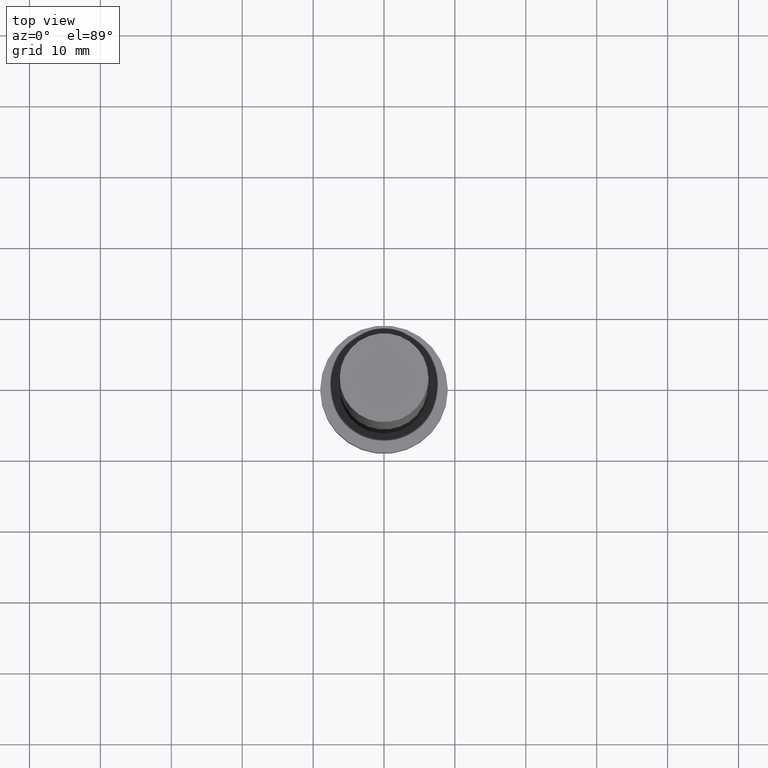
[diagram: clean part render]
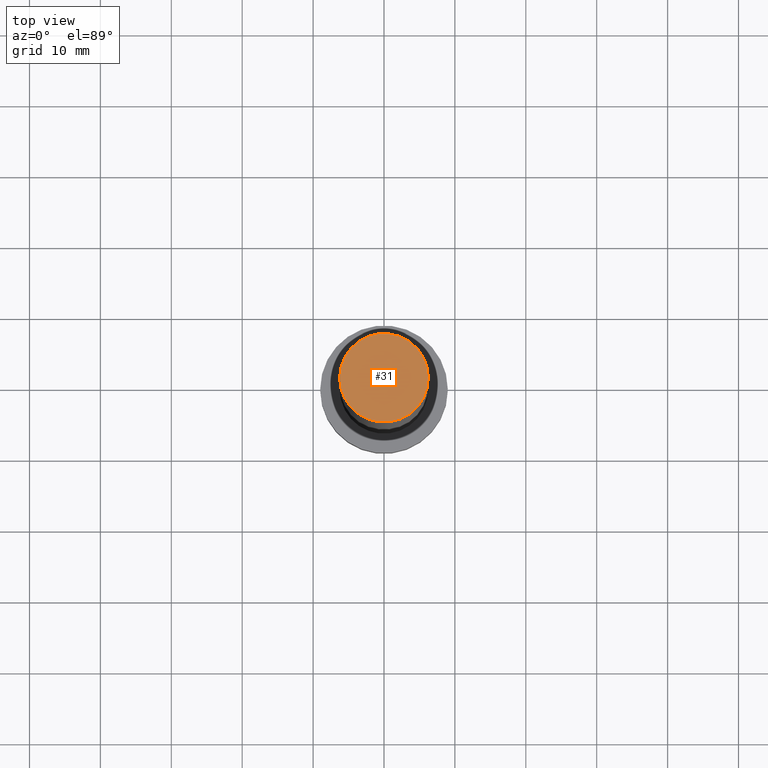
[diagram: same view with one face highlighted and labeled with its STEP entity id]
A machine part, top view. The second image highlights one B-rep face of the part: STEP entity #31.
In plain terms, the highlighted planar face has unit normal (0, 0, 1).
Its self-contained STEP definition (entity closure, byte-faithful):
#9 = CARTESIAN_POINT ( 'NONE',  ( -6.250000000000000000, 0.000000000000000000, 100.0000000000000000 ) ) ;
#11 = DIRECTION ( 'NONE',  ( 0.000000000000000000, 0.000000000000000000, 1.000000000000000000 ) ) ;
#20 = VERTEX_POINT ( 'NONE', #167 ) ;
#31 = ADVANCED_FACE ( 'NONE', ( #34 ), #208, .T. ) ;
#34 = FACE_OUTER_BOUND ( 'NONE', #47, .T. ) ;
#47 = EDGE_LOOP ( 'NONE', ( #226, #201 ) ) ;
#55 = DIRECTION ( 'NONE',  ( 1.000000000000000000, 0.000000000000000000, -0.000000000000000000 ) ) ;
#59 = DIRECTION ( 'NONE',  ( 0.000000000000000000, 0.000000000000000000, 1.000000000000000000 ) ) ;
#62 = VERTEX_POINT ( 'NONE', #9 ) ;
#73 = CARTESIAN_POINT ( 'NONE',  ( 0.000000000000000000, 0.000000000000000000, 100.0000000000000000 ) ) ;
#117 = AXIS2_PLACEMENT_3D ( 'NONE', #186, #11, #248 ) ;
#132 = EDGE_CURVE ( 'NONE', #62, #20, #216, .T. ) ;
#154 = CARTESIAN_POINT ( 'NONE',  ( 0.000000000000000000, 0.000000000000000000, 100.0000000000000000 ) ) ;
#157 = AXIS2_PLACEMENT_3D ( 'NONE', #73, #165, #55 ) ;
#165 = DIRECTION ( 'NONE',  ( 0.000000000000000000, 0.000000000000000000, 1.000000000000000000 ) ) ;
#167 = CARTESIAN_POINT ( 'NONE',  ( 6.250000000000000000, 7.654042494670955634E-16, 100.0000000000000000 ) ) ;
#186 = CARTESIAN_POINT ( 'NONE',  ( 0.000000000000000000, 0.000000000000000000, 100.0000000000000000 ) ) ;
#191 = DIRECTION ( 'NONE',  ( 1.000000000000000000, 0.000000000000000000, 0.000000000000000000 ) ) ;
#201 = ORIENTED_EDGE ( 'NONE', *, *, #223, .T. ) ;
#202 = CIRCLE ( 'NONE', #211, 6.250000000000000000 ) ;
#208 = PLANE ( 'NONE',  #157 ) ;
#211 = AXIS2_PLACEMENT_3D ( 'NONE', #154, #59, #191 ) ;
#216 = CIRCLE ( 'NONE', #117, 6.250000000000000000 ) ;
#223 = EDGE_CURVE ( 'NONE', #20, #62, #202, .T. ) ;
#226 = ORIENTED_EDGE ( 'NONE', *, *, #132, .T. ) ;
#248 = DIRECTION ( 'NONE',  ( 1.000000000000000000, 0.000000000000000000, 0.000000000000000000 ) ) ;